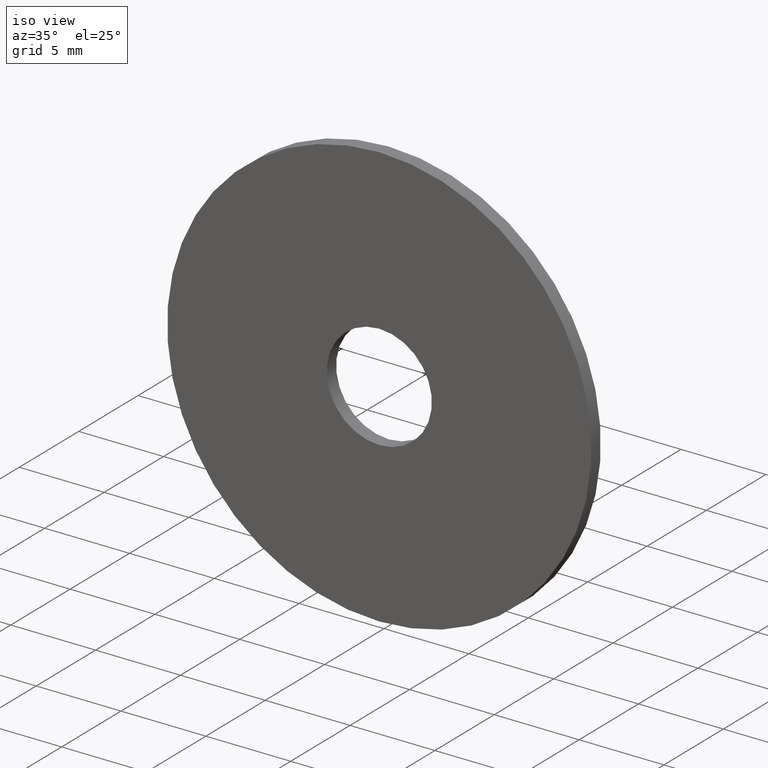
[diagram: clean part render]
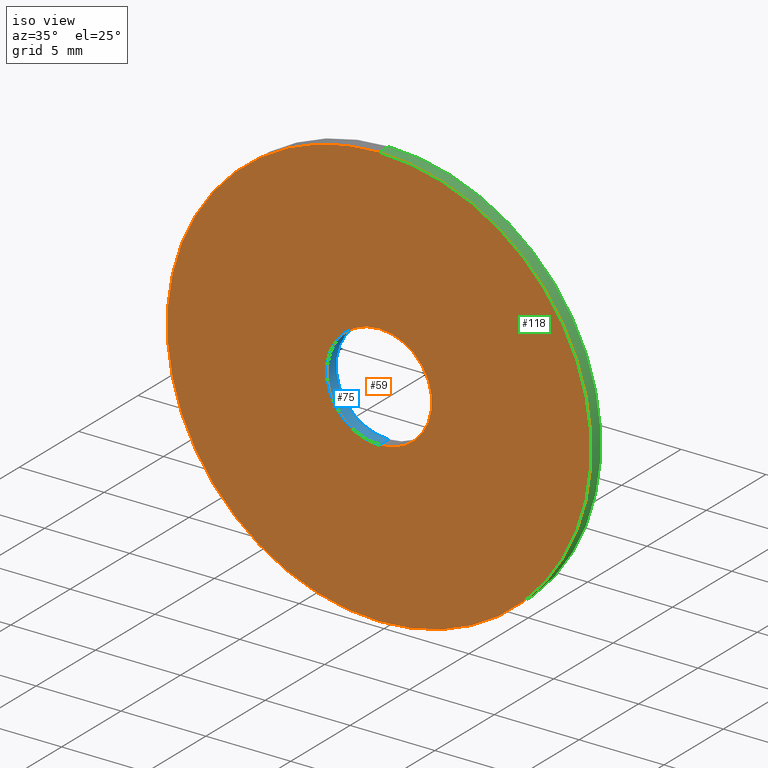
[diagram: same view with three faces highlighted in distinct colors, each labeled with its STEP entity id]
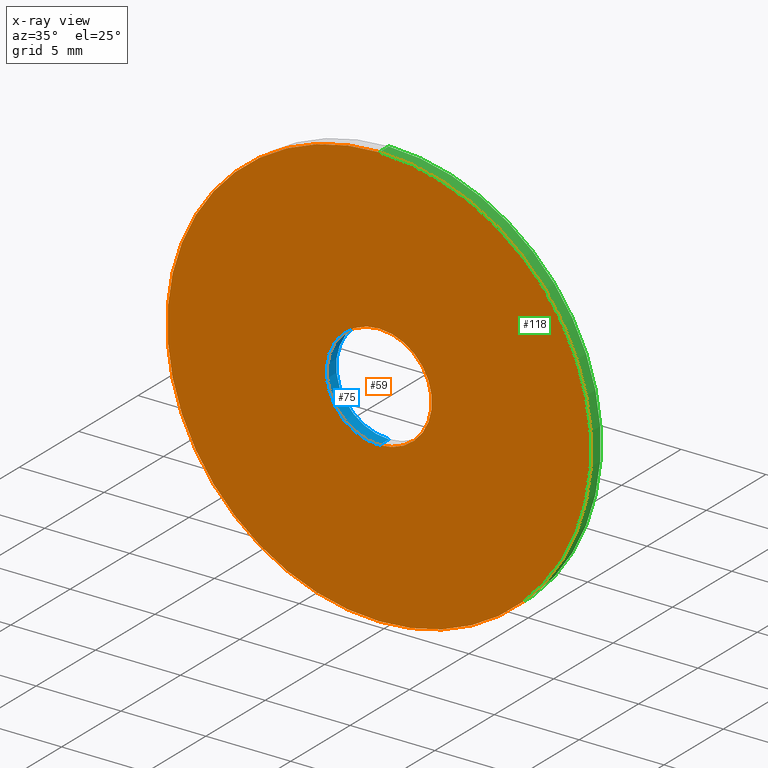
[diagram: x-ray of the same camera — body ghosted, the three highlighted faces saturated]
A machine part, iso view with three faces highlighted in distinct colors.
The next image is the same camera in x-ray (body ghosted, the three faces saturated) — at least one of them is partly hidden behind the body in this view.
Their STEP definitions:

[orange] entity #59 — the highlighted planar face has unit normal (0, 1, 0).
#1 = AXIS2_PLACEMENT_3D ( 'NONE', #58, #137, #60 ) ;
#3 = DIRECTION ( 'NONE',  ( 0.000000000000000000, 1.000000000000000000, 0.000000000000000000 ) ) ;
#4 = CARTESIAN_POINT ( 'NONE',  ( 0.000000000000000000, -0.4000000000000000222, 0.000000000000000000 ) ) ;
#6 = CARTESIAN_POINT ( 'NONE',  ( 0.000000000000000000, -0.4000000000000000222, -12.50000000000000000 ) ) ;
#8 = DIRECTION ( 'NONE',  ( 0.000000000000000000, 0.000000000000000000, 1.000000000000000000 ) ) ;
#14 = DIRECTION ( 'NONE',  ( 0.000000000000000000, 0.000000000000000000, 1.000000000000000000 ) ) ;
#16 = CARTESIAN_POINT ( 'NONE',  ( 1.530808498934191521E-15, -0.4000000000000000222, 12.50000000000000000 ) ) ;
#18 = AXIS2_PLACEMENT_3D ( 'NONE', #87, #179, #121 ) ;
#19 = EDGE_LOOP ( 'NONE', ( #96, #222 ) ) ;
#34 = CIRCLE ( 'NONE', #176, 12.50000000000000000 ) ;
#40 = VERTEX_POINT ( 'NONE', #16 ) ;
#58 = CARTESIAN_POINT ( 'NONE',  ( 0.000000000000000000, -0.4000000000000000222, 0.000000000000000000 ) ) ;
#59 = ADVANCED_FACE ( 'NONE', ( #154, #172 ), #213, .F. ) ;
#60 = DIRECTION ( 'NONE',  ( 0.000000000000000000, -0.000000000000000000, 1.000000000000000000 ) ) ;
#61 = CARTESIAN_POINT ( 'NONE',  ( 0.000000000000000000, -0.4000000000000000222, 3.100000000000000089 ) ) ;
#67 = EDGE_LOOP ( 'NONE', ( #243, #193 ) ) ;
#69 = EDGE_CURVE ( 'NONE', #40, #177, #34, .T. ) ;
#71 = CARTESIAN_POINT ( 'NONE',  ( 0.000000000000000000, -0.4000000000000000222, 0.000000000000000000 ) ) ;
#77 = VERTEX_POINT ( 'NONE', #245 ) ;
#84 = DIRECTION ( 'NONE',  ( 0.000000000000000000, 1.000000000000000000, 0.000000000000000000 ) ) ;
#87 = CARTESIAN_POINT ( 'NONE',  ( 0.000000000000000000, -0.4000000000000000222, 0.000000000000000000 ) ) ;
#96 = ORIENTED_EDGE ( 'NONE', *, *, #210, .T. ) ;
#104 = CIRCLE ( 'NONE', #116, 12.50000000000000000 ) ;
#108 = CARTESIAN_POINT ( 'NONE',  ( 0.000000000000000000, -0.4000000000000000222, 0.000000000000000000 ) ) ;
#116 = AXIS2_PLACEMENT_3D ( 'NONE', #108, #3, #159 ) ;
#121 = DIRECTION ( 'NONE',  ( 0.000000000000000000, 0.000000000000000000, 1.000000000000000000 ) ) ;
#137 = DIRECTION ( 'NONE',  ( 0.000000000000000000, 1.000000000000000000, 0.000000000000000000 ) ) ;
#153 = VERTEX_POINT ( 'NONE', #61 ) ;
#154 = FACE_BOUND ( 'NONE', #19, .T. ) ;
#159 = DIRECTION ( 'NONE',  ( 0.000000000000000000, 0.000000000000000000, 1.000000000000000000 ) ) ;
#168 = CIRCLE ( 'NONE', #18, 3.100000000000000089 ) ;
#172 = FACE_OUTER_BOUND ( 'NONE', #67, .T. ) ;
#174 = DIRECTION ( 'NONE',  ( 0.000000000000000000, 1.000000000000000000, 0.000000000000000000 ) ) ;
#176 = AXIS2_PLACEMENT_3D ( 'NONE', #71, #174, #14 ) ;
#177 = VERTEX_POINT ( 'NONE', #6 ) ;
#179 = DIRECTION ( 'NONE',  ( 0.000000000000000000, 1.000000000000000000, 0.000000000000000000 ) ) ;
#181 = AXIS2_PLACEMENT_3D ( 'NONE', #4, #84, #8 ) ;
#193 = ORIENTED_EDGE ( 'NONE', *, *, #69, .F. ) ;
#210 = EDGE_CURVE ( 'NONE', #153, #77, #235, .T. ) ;
#213 = PLANE ( 'NONE',  #1 ) ;
#219 = EDGE_CURVE ( 'NONE', #77, #153, #168, .T. ) ;
#222 = ORIENTED_EDGE ( 'NONE', *, *, #219, .T. ) ;
#231 = EDGE_CURVE ( 'NONE', #177, #40, #104, .T. ) ;
#235 = CIRCLE ( 'NONE', #181, 3.100000000000000089 ) ;
#243 = ORIENTED_EDGE ( 'NONE', *, *, #231, .F. ) ;
#245 = CARTESIAN_POINT ( 'NONE',  ( 3.796405077356794918E-16, -0.4000000000000000222, -3.100000000000000089 ) ) ;

[blue] entity #75 — the highlighted cylindrical surface (partial cylindrical patch) has radius 3.1 mm, axis along (-0, 1, -0).
#18 = AXIS2_PLACEMENT_3D ( 'NONE', #87, #179, #121 ) ;
#23 = CARTESIAN_POINT ( 'NONE',  ( 0.000000000000000000, 0.4000000000000000222, 0.000000000000000000 ) ) ;
#25 = CARTESIAN_POINT ( 'NONE',  ( 0.000000000000000000, -0.4000000000000000222, 3.100000000000000089 ) ) ;
#26 = VECTOR ( 'NONE', #53, 1000.000000000000000 ) ;
#32 = CYLINDRICAL_SURFACE ( 'NONE', #214, 3.100000000000000089 ) ;
#38 = DIRECTION ( 'NONE',  ( 0.000000000000000000, 0.000000000000000000, 1.000000000000000000 ) ) ;
#41 = DIRECTION ( 'NONE',  ( -0.000000000000000000, 1.000000000000000000, -0.000000000000000000 ) ) ;
#42 = CARTESIAN_POINT ( 'NONE',  ( 0.000000000000000000, 0.4000000000000000222, 3.100000000000000089 ) ) ;
#51 = ORIENTED_EDGE ( 'NONE', *, *, #200, .F. ) ;
#53 = DIRECTION ( 'NONE',  ( -0.000000000000000000, 1.000000000000000000, -0.000000000000000000 ) ) ;
#54 = CARTESIAN_POINT ( 'NONE',  ( 0.000000000000000000, -0.4000000000000000222, 0.000000000000000000 ) ) ;
#61 = CARTESIAN_POINT ( 'NONE',  ( 0.000000000000000000, -0.4000000000000000222, 3.100000000000000089 ) ) ;
#75 = ADVANCED_FACE ( 'NONE', ( #119 ), #32, .F. ) ;
#77 = VERTEX_POINT ( 'NONE', #245 ) ;
#82 = CARTESIAN_POINT ( 'NONE',  ( 3.796405077356794918E-16, 0.4000000000000000222, -3.100000000000000089 ) ) ;
#87 = CARTESIAN_POINT ( 'NONE',  ( 0.000000000000000000, -0.4000000000000000222, 0.000000000000000000 ) ) ;
#97 = EDGE_CURVE ( 'NONE', #77, #241, #149, .T. ) ;
#99 = ORIENTED_EDGE ( 'NONE', *, *, #219, .F. ) ;
#117 = ORIENTED_EDGE ( 'NONE', *, *, #155, .T. ) ;
#119 = FACE_OUTER_BOUND ( 'NONE', #204, .T. ) ;
#121 = DIRECTION ( 'NONE',  ( 0.000000000000000000, 0.000000000000000000, 1.000000000000000000 ) ) ;
#123 = LINE ( 'NONE', #25, #127 ) ;
#127 = VECTOR ( 'NONE', #234, 1000.000000000000000 ) ;
#149 = LINE ( 'NONE', #226, #26 ) ;
#153 = VERTEX_POINT ( 'NONE', #61 ) ;
#155 = EDGE_CURVE ( 'NONE', #241, #203, #238, .T. ) ;
#168 = CIRCLE ( 'NONE', #18, 3.100000000000000089 ) ;
#175 = AXIS2_PLACEMENT_3D ( 'NONE', #23, #239, #199 ) ;
#179 = DIRECTION ( 'NONE',  ( 0.000000000000000000, 1.000000000000000000, 0.000000000000000000 ) ) ;
#199 = DIRECTION ( 'NONE',  ( 0.000000000000000000, 0.000000000000000000, 1.000000000000000000 ) ) ;
#200 = EDGE_CURVE ( 'NONE', #153, #203, #123, .T. ) ;
#203 = VERTEX_POINT ( 'NONE', #42 ) ;
#204 = EDGE_LOOP ( 'NONE', ( #99, #248, #117, #51 ) ) ;
#214 = AXIS2_PLACEMENT_3D ( 'NONE', #54, #41, #38 ) ;
#219 = EDGE_CURVE ( 'NONE', #77, #153, #168, .T. ) ;
#226 = CARTESIAN_POINT ( 'NONE',  ( 3.796405077356794918E-16, -0.4000000000000000222, -3.100000000000000089 ) ) ;
#234 = DIRECTION ( 'NONE',  ( -0.000000000000000000, 1.000000000000000000, -0.000000000000000000 ) ) ;
#238 = CIRCLE ( 'NONE', #175, 3.100000000000000089 ) ;
#239 = DIRECTION ( 'NONE',  ( 0.000000000000000000, 1.000000000000000000, 0.000000000000000000 ) ) ;
#241 = VERTEX_POINT ( 'NONE', #82 ) ;
#245 = CARTESIAN_POINT ( 'NONE',  ( 3.796405077356794918E-16, -0.4000000000000000222, -3.100000000000000089 ) ) ;
#248 = ORIENTED_EDGE ( 'NONE', *, *, #97, .T. ) ;

[green] entity #118 — the highlighted cylindrical surface (partial cylindrical patch) has radius 12.5 mm, axis along (-0, -1, -0).
#6 = CARTESIAN_POINT ( 'NONE',  ( 0.000000000000000000, -0.4000000000000000222, -12.50000000000000000 ) ) ;
#12 = ORIENTED_EDGE ( 'NONE', *, *, #141, .F. ) ;
#14 = DIRECTION ( 'NONE',  ( 0.000000000000000000, 0.000000000000000000, 1.000000000000000000 ) ) ;
#16 = CARTESIAN_POINT ( 'NONE',  ( 1.530808498934191521E-15, -0.4000000000000000222, 12.50000000000000000 ) ) ;
#17 = DIRECTION ( 'NONE',  ( -0.000000000000000000, -1.000000000000000000, -0.000000000000000000 ) ) ;
#34 = CIRCLE ( 'NONE', #176, 12.50000000000000000 ) ;
#40 = VERTEX_POINT ( 'NONE', #16 ) ;
#45 = CARTESIAN_POINT ( 'NONE',  ( 0.000000000000000000, 0.4000000000000000222, -12.50000000000000000 ) ) ;
#46 = DIRECTION ( 'NONE',  ( 0.000000000000000000, 0.000000000000000000, -1.000000000000000000 ) ) ;
#62 = CIRCLE ( 'NONE', #202, 12.50000000000000000 ) ;
#66 = DIRECTION ( 'NONE',  ( 0.000000000000000000, 1.000000000000000000, 0.000000000000000000 ) ) ;
#69 = EDGE_CURVE ( 'NONE', #40, #177, #34, .T. ) ;
#71 = CARTESIAN_POINT ( 'NONE',  ( 0.000000000000000000, -0.4000000000000000222, 0.000000000000000000 ) ) ;
#81 = CARTESIAN_POINT ( 'NONE',  ( 1.530808498934191521E-15, 0.4000000000000000222, 12.50000000000000000 ) ) ;
#94 = ORIENTED_EDGE ( 'NONE', *, *, #160, .F. ) ;
#102 = LINE ( 'NONE', #81, #157 ) ;
#106 = CARTESIAN_POINT ( 'NONE',  ( 0.000000000000000000, 0.4000000000000000222, 0.000000000000000000 ) ) ;
#111 = ORIENTED_EDGE ( 'NONE', *, *, #69, .T. ) ;
#114 = CYLINDRICAL_SURFACE ( 'NONE', #249, 12.50000000000000000 ) ;
#118 = ADVANCED_FACE ( 'NONE', ( #208 ), #114, .T. ) ;
#124 = CARTESIAN_POINT ( 'NONE',  ( 0.000000000000000000, 0.4000000000000000222, -12.50000000000000000 ) ) ;
#126 = VERTEX_POINT ( 'NONE', #197 ) ;
#131 = ORIENTED_EDGE ( 'NONE', *, *, #247, .T. ) ;
#136 = VERTEX_POINT ( 'NONE', #45 ) ;
#138 = VECTOR ( 'NONE', #184, 1000.000000000000000 ) ;
#141 = EDGE_CURVE ( 'NONE', #136, #177, #142, .T. ) ;
#142 = LINE ( 'NONE', #124, #138 ) ;
#156 = DIRECTION ( 'NONE',  ( 0.000000000000000000, 0.000000000000000000, 1.000000000000000000 ) ) ;
#157 = VECTOR ( 'NONE', #237, 1000.000000000000000 ) ;
#160 = EDGE_CURVE ( 'NONE', #126, #136, #62, .T. ) ;
#174 = DIRECTION ( 'NONE',  ( 0.000000000000000000, 1.000000000000000000, 0.000000000000000000 ) ) ;
#176 = AXIS2_PLACEMENT_3D ( 'NONE', #71, #174, #14 ) ;
#177 = VERTEX_POINT ( 'NONE', #6 ) ;
#184 = DIRECTION ( 'NONE',  ( -0.000000000000000000, -1.000000000000000000, -0.000000000000000000 ) ) ;
#192 = CARTESIAN_POINT ( 'NONE',  ( 0.000000000000000000, 0.4000000000000000222, 0.000000000000000000 ) ) ;
#197 = CARTESIAN_POINT ( 'NONE',  ( 1.530808498934191521E-15, 0.4000000000000000222, 12.50000000000000000 ) ) ;
#202 = AXIS2_PLACEMENT_3D ( 'NONE', #106, #66, #156 ) ;
#208 = FACE_OUTER_BOUND ( 'NONE', #228, .T. ) ;
#228 = EDGE_LOOP ( 'NONE', ( #94, #131, #111, #12 ) ) ;
#237 = DIRECTION ( 'NONE',  ( -0.000000000000000000, -1.000000000000000000, -0.000000000000000000 ) ) ;
#247 = EDGE_CURVE ( 'NONE', #126, #40, #102, .T. ) ;
#249 = AXIS2_PLACEMENT_3D ( 'NONE', #192, #17, #46 ) ;